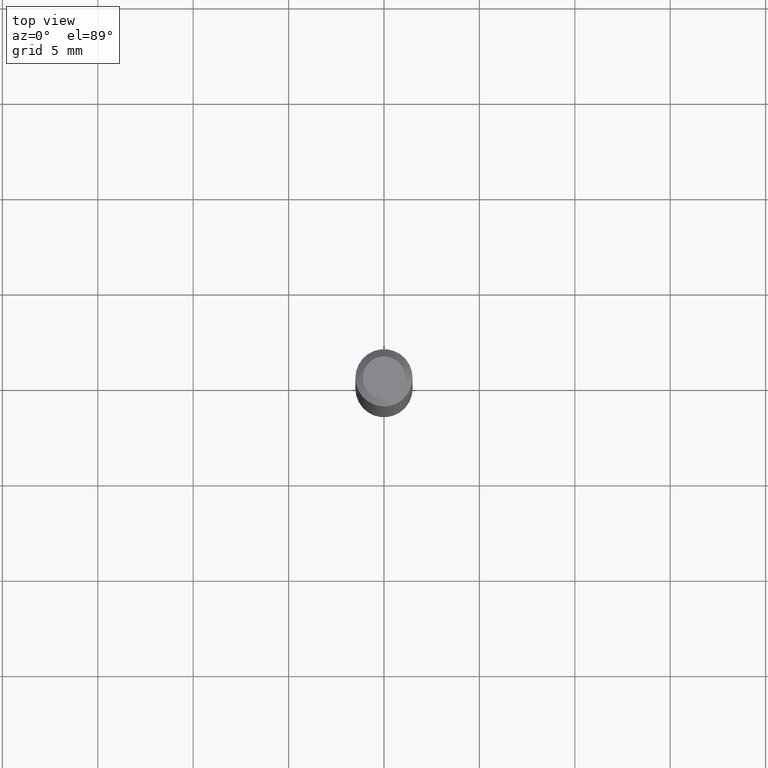
[diagram: clean part render]
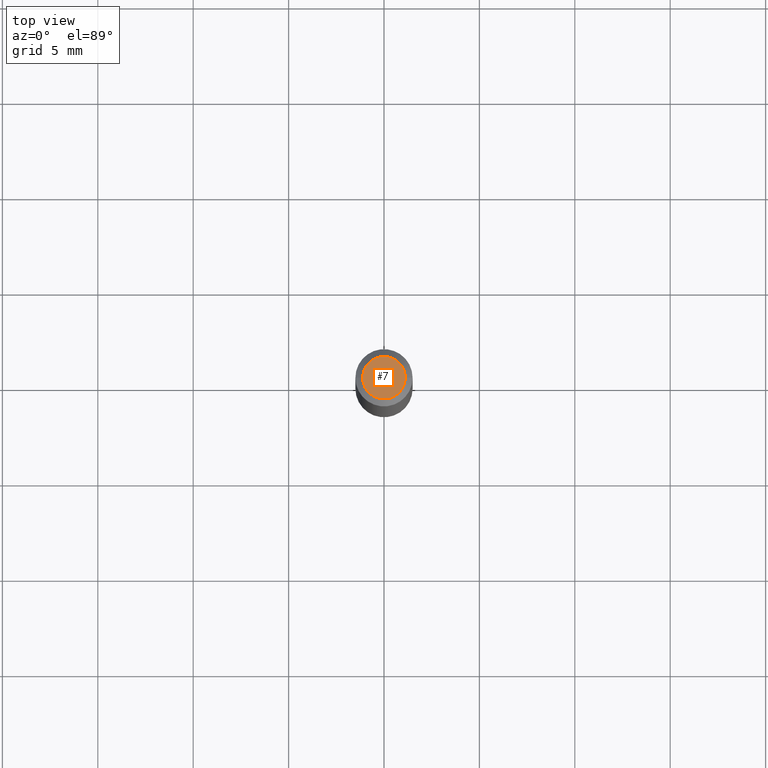
[diagram: same view with one face highlighted and labeled with its STEP entity id]
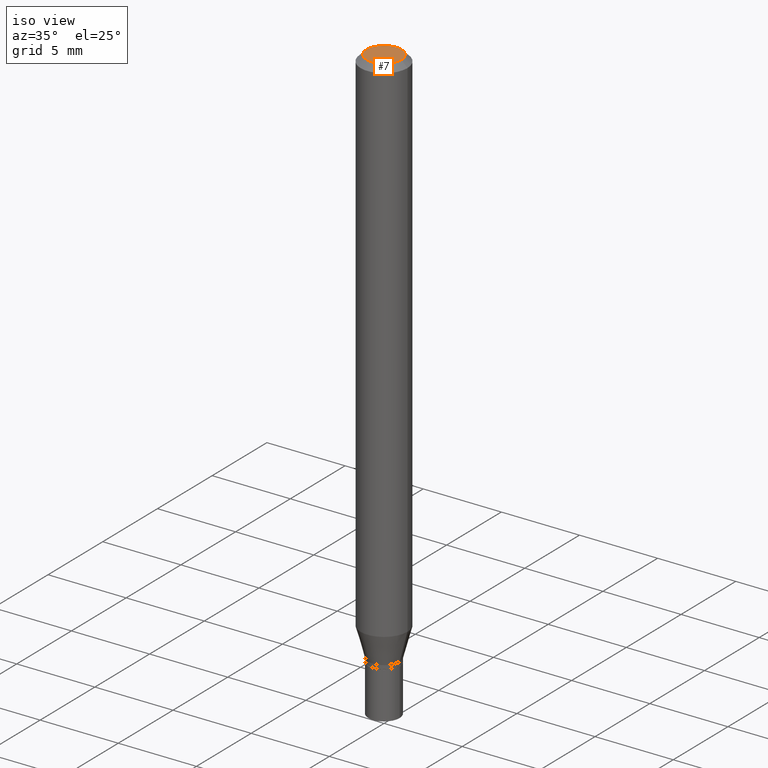
[diagram: same view with one face highlighted and labeled with its STEP entity id]
A machine part, top view. The second image highlights one B-rep face of the part: STEP entity #7.
A second angle (iso view) of the same face is appended — the face is thin or edge-on in the first view.
In plain terms, the highlighted planar face has unit normal (0, -0, -1).
Its self-contained STEP definition (entity closure, byte-faithful):
#1 = EDGE_CURVE ( 'NONE', #387, #183, #13, .T. ) ;
#7 = ADVANCED_FACE ( 'NONE', ( #93 ), #226, .F. ) ;
#13 = CIRCLE ( 'NONE', #282, 0.04404999999999999888 ) ;
#14 = AXIS2_PLACEMENT_3D ( 'NONE', #165, #169, #456 ) ;
#39 = EDGE_LOOP ( 'NONE', ( #95, #428 ) ) ;
#78 = CARTESIAN_POINT ( 'NONE',  ( 3.075995059520799729E-16, 0.04404999999999999888, 2.287766971589489619E-17 ) ) ;
#93 = FACE_OUTER_BOUND ( 'NONE', #39, .T. ) ;
#95 = ORIENTED_EDGE ( 'NONE', *, *, #1, .T. ) ;
#160 = DIRECTION ( 'NONE',  ( 2.438088387897960049E-29, -3.491481338843145188E-15, -1.000000000000000000 ) ) ;
#165 = CARTESIAN_POINT ( 'NONE',  ( -8.641182519006283330E-45, 1.233731848647590289E-30, 3.533548453838708869E-16 ) ) ;
#169 = DIRECTION ( 'NONE',  ( -2.445468806185136597E-29, 3.491481338843145583E-15, 1.000000000000000000 ) ) ;
#178 = DIRECTION ( 'NONE',  ( 1.000000000000000000, -6.982962677686265922E-15, 4.819687581474398999E-29 ) ) ;
#180 = DIRECTION ( 'NONE',  ( -1.000000000000000000, 6.982962677686265922E-15, -4.876176775795935793E-29 ) ) ;
#183 = VERTEX_POINT ( 'NONE', #383 ) ;
#212 = CARTESIAN_POINT ( 'NONE',  ( -0.04404999999999999888, 3.337856159934040055E-16, 3.533548453838686682E-16 ) ) ;
#226 = PLANE ( 'NONE',  #298 ) ;
#282 = AXIS2_PLACEMENT_3D ( 'NONE', #429, #435, #178 ) ;
#298 = AXIS2_PLACEMENT_3D ( 'NONE', #78, #160, #180 ) ;
#333 = CIRCLE ( 'NONE', #14, 0.04404999999999999888 ) ;
#383 = CARTESIAN_POINT ( 'NONE',  ( 0.04404999999999999888, -3.798447818264454163E-16, 3.533548453838733521E-16 ) ) ;
#387 = VERTEX_POINT ( 'NONE', #212 ) ;
#389 = EDGE_CURVE ( 'NONE', #183, #387, #333, .T. ) ;
#428 = ORIENTED_EDGE ( 'NONE', *, *, #389, .T. ) ;
#429 = CARTESIAN_POINT ( 'NONE',  ( -8.641182519006283330E-45, 1.233731848647590289E-30, 3.533548453838708869E-16 ) ) ;
#435 = DIRECTION ( 'NONE',  ( -2.445468806185136597E-29, 3.491481338843145583E-15, 1.000000000000000000 ) ) ;
#456 = DIRECTION ( 'NONE',  ( 1.000000000000000000, -6.982962677686265922E-15, 4.819687581474398999E-29 ) ) ;